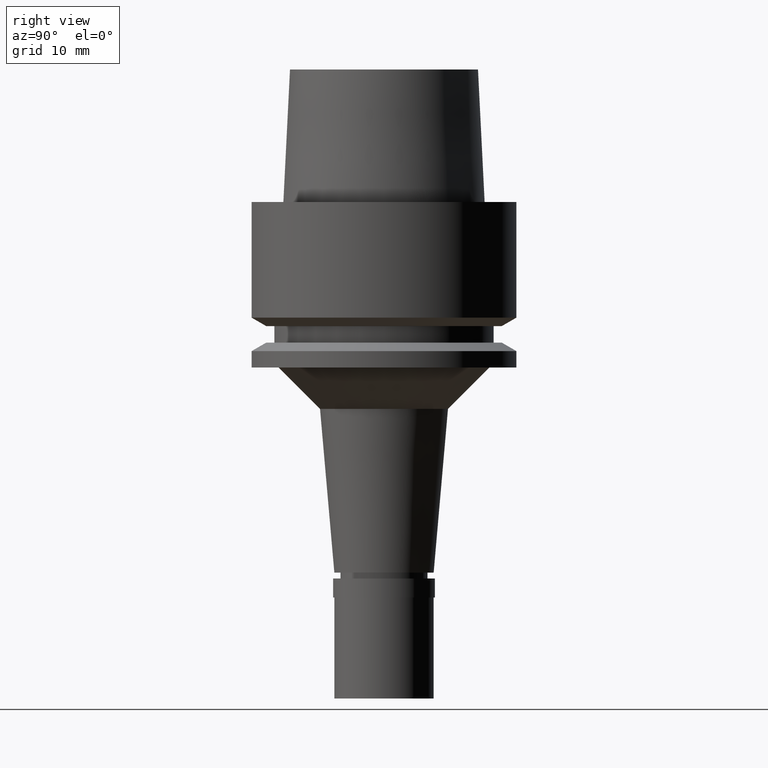
[diagram: clean part render]
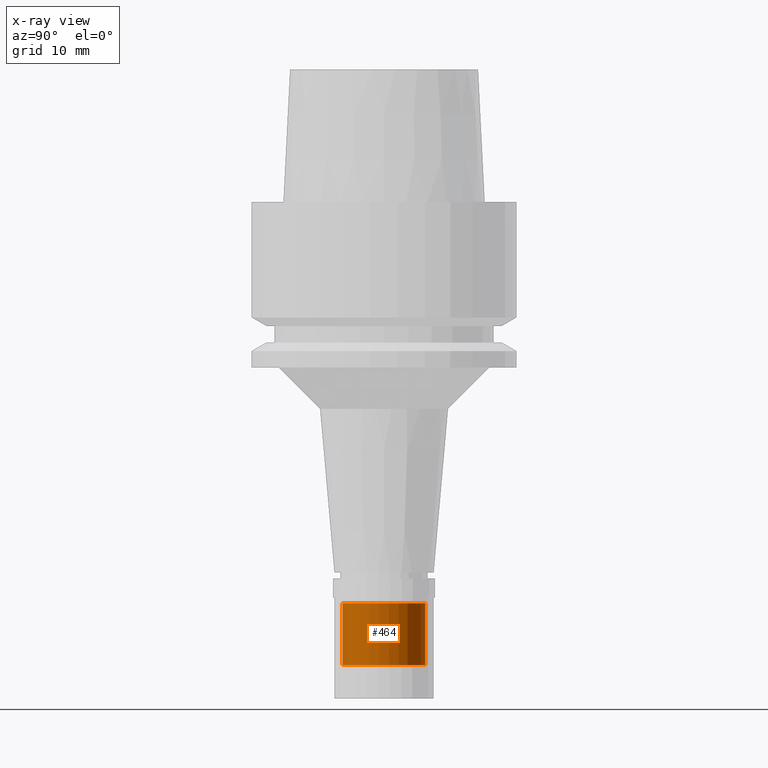
[diagram: x-ray — body ghosted, one internal face saturated and labeled with its STEP entity id]
A machine part, right view, then the same camera in x-ray: the body is ghosted and one INTERNAL B-rep face — a face not visible from any outside direction — is saturated and labeled: STEP entity #464.
In plain terms, the highlighted cylindrical surface (partial cylindrical patch) has radius 5 mm, axis along (0, 0, -1).
Its self-contained STEP definition (entity closure, byte-faithful):
#88 = ORIENTED_EDGE ( 'NONE', *, *, #2544, .F. ) ;
#121 = CARTESIAN_POINT ( 'NONE',  ( 0.0000000000000000000, 0.0000000000000000000, 19.59999999999999787 ) ) ;
#122 = CARTESIAN_POINT ( 'NONE',  ( 0.0000000000000000000, 5.000000000000000000, -56.00000000000000000 ) ) ;
#125 = VERTEX_POINT ( 'NONE', #2585 ) ;
#158 = CIRCLE ( 'NONE', #1555, 5.000000000000000000 ) ;
#287 = VECTOR ( 'NONE', #1173, 1000.000000000000000 ) ;
#294 = ORIENTED_EDGE ( 'NONE', *, *, #1034, .T. ) ;
#320 = EDGE_LOOP ( 'NONE', ( #1303, #2323, #294, #88 ) ) ;
#464 = ADVANCED_FACE ( 'NONE', ( #2221 ), #1383, .T. ) ;
#502 = CARTESIAN_POINT ( 'NONE',  ( 0.0000000000000000000, -5.000000000000000000, -56.00000000000000000 ) ) ;
#517 = DIRECTION ( 'NONE',  ( 0.0000000000000000000, 0.0000000000000000000, 1.000000000000000000 ) ) ;
#601 = DIRECTION ( 'NONE',  ( 0.0000000000000000000, 0.0000000000000000000, -1.000000000000000000 ) ) ;
#687 = VECTOR ( 'NONE', #2401, 1000.000000000000000 ) ;
#692 = CARTESIAN_POINT ( 'NONE',  ( 0.0000000000000000000, -5.000000000000000000, -48.50000000000000000 ) ) ;
#735 = LINE ( 'NONE', #692, #287 ) ;
#897 = DIRECTION ( 'NONE',  ( 0.0000000000000000000, 0.0000000000000000000, -1.000000000000000000 ) ) ;
#908 = DIRECTION ( 'NONE',  ( 0.0000000000000000000, 1.000000000000000000, 0.0000000000000000000 ) ) ;
#911 = CARTESIAN_POINT ( 'NONE',  ( 0.0000000000000000000, 0.0000000000000000000, -56.00000000000000000 ) ) ;
#919 = VERTEX_POINT ( 'NONE', #122 ) ;
#1005 = EDGE_CURVE ( 'NONE', #125, #1502, #735, .T. ) ;
#1034 = EDGE_CURVE ( 'NONE', #1502, #919, #158, .T. ) ;
#1173 = DIRECTION ( 'NONE',  ( 0.0000000000000000000, 0.0000000000000000000, -1.000000000000000000 ) ) ;
#1252 = CARTESIAN_POINT ( 'NONE',  ( 0.0000000000000000000, 5.000000000000000000, -48.50000000000000000 ) ) ;
#1303 = ORIENTED_EDGE ( 'NONE', *, *, #1436, .T. ) ;
#1383 = CYLINDRICAL_SURFACE ( 'NONE', #1949, 5.000000000000000000 ) ;
#1436 = EDGE_CURVE ( 'NONE', #2251, #125, #2219, .T. ) ;
#1502 = VERTEX_POINT ( 'NONE', #502 ) ;
#1555 = AXIS2_PLACEMENT_3D ( 'NONE', #911, #517, #1573 ) ;
#1573 = DIRECTION ( 'NONE',  ( 0.0000000000000000000, -1.000000000000000000, 0.0000000000000000000 ) ) ;
#1949 = AXIS2_PLACEMENT_3D ( 'NONE', #121, #601, #2030 ) ;
#1964 = AXIS2_PLACEMENT_3D ( 'NONE', #2568, #897, #908 ) ;
#2030 = DIRECTION ( 'NONE',  ( 0.0000000000000000000, -1.000000000000000000, 0.0000000000000000000 ) ) ;
#2184 = LINE ( 'NONE', #2622, #687 ) ;
#2219 = CIRCLE ( 'NONE', #1964, 5.000000000000000000 ) ;
#2221 = FACE_OUTER_BOUND ( 'NONE', #320, .T. ) ;
#2251 = VERTEX_POINT ( 'NONE', #1252 ) ;
#2323 = ORIENTED_EDGE ( 'NONE', *, *, #1005, .T. ) ;
#2401 = DIRECTION ( 'NONE',  ( 0.0000000000000000000, 0.0000000000000000000, -1.000000000000000000 ) ) ;
#2544 = EDGE_CURVE ( 'NONE', #2251, #919, #2184, .T. ) ;
#2568 = CARTESIAN_POINT ( 'NONE',  ( 0.0000000000000000000, 0.0000000000000000000, -48.50000000000000000 ) ) ;
#2585 = CARTESIAN_POINT ( 'NONE',  ( 0.0000000000000000000, -5.000000000000000000, -48.50000000000000000 ) ) ;
#2622 = CARTESIAN_POINT ( 'NONE',  ( 0.0000000000000000000, 5.000000000000000000, -48.50000000000000000 ) ) ;